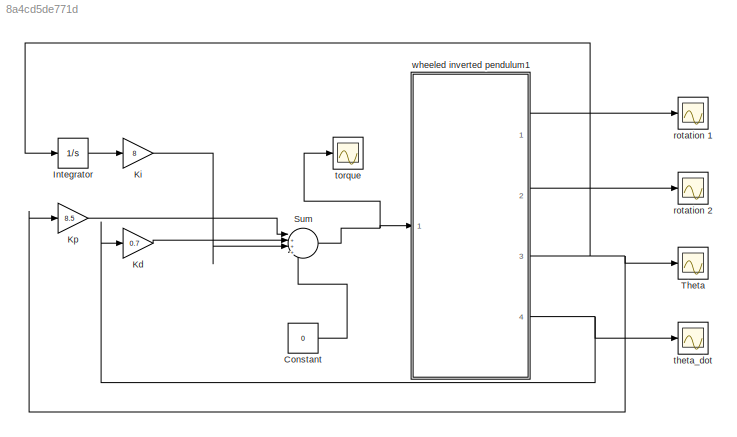
MODEL slx_8a4cd5de771d
KIND model
CONFIG AbsTol = auto
CONFIG EnableMultiTasking = off
CONFIG FixedStep = auto
CONFIG MaxStep = auto
CONFIG MinStep = auto
CONFIG RelTol = 1e-3
CONFIG SampleTimeConstraint = Unconstrained
CONFIG Solver = VariableStepAuto
CONFIG SolverName = VariableStepAuto
CONFIG StartTime = 0.0
CONFIG StopTime = 10.0
BLOCK [Constant] Constant
  Value = 0
BLOCK [Integrator] Integrator
  Ports = [1, 1]
BLOCK [Gain] Kd
  Gain = 0.7
BLOCK [Gain] Ki
  Gain = 8
BLOCK [Gain] Kp
  Gain = 8.5
BLOCK [Sum] Sum
  Inputs = |+++-
  Ports = [4, 1]
BLOCK [Scope] Theta
  Floating = off
  NumInputPorts = 1
  Ports = [1]
  ScopeSpecificationString = Simulink.scopes.TimeScopeBlockCfg('CurrentConfiguration', extmgr.ConfigurationSet(extmgr.Configuration('Core','General UI',true),extmgr.Configuration('Core','Source UI',true),extmgr.Configuration('Sources','WiredSimulink',true,'DataLoggingVariableName','ScopeData2'),extmgr.Configuration('Visuals','Time Domain',true,'SerializedDisplays',{struct('MinYLimReal','-0.20928','MaxYLimReal','1.88356','YLab...<+1494ch>
BLOCK [Scope] rotation 1
  Floating = off
  NumInputPorts = 1
  Ports = [1]
  ScopeSpecificationString = Simulink.scopes.TimeScopeBlockCfg('CurrentConfiguration', extmgr.ConfigurationSet(extmgr.Configuration('Core','General UI',true),extmgr.Configuration('Core','Source UI',true),extmgr.Configuration('Sources','WiredSimulink',true),extmgr.Configuration('Visuals','Time Domain',true,'SerializedDisplays',{struct('MinYLimReal','-5.94799','MaxYLimReal','0.66089','YLabelReal','','MinYLimMag','0.00000','MaxY...<+1468ch>
BLOCK [Scope] rotation 2
  Floating = off
  NumInputPorts = 1
  Ports = [1]
  ScopeSpecificationString = Simulink.scopes.TimeScopeBlockCfg('CurrentConfiguration', extmgr.ConfigurationSet(extmgr.Configuration('Core','General UI',true),extmgr.Configuration('Core','Source UI',true),extmgr.Configuration('Sources','WiredSimulink',true,'DataLoggingVariableName','ScopeData1'),extmgr.Configuration('Visuals','Time Domain',true,'SerializedDisplays',{struct('MinYLimReal','-38.44976','MaxYLimReal','346.04782','Y...<+1542ch>
BLOCK [Scope] theta_dot
  Floating = off
  NumInputPorts = 1
  Ports = [1]
  ScopeSpecificationString = Simulink.scopes.TimeScopeBlockCfg('CurrentConfiguration', extmgr.ConfigurationSet(extmgr.Configuration('Core','General UI',true),extmgr.Configuration('Core','Source UI',true),extmgr.Configuration('Sources','WiredSimulink',true,'DataLoggingVariableName','ScopeData3'),extmgr.Configuration('Visuals','Time Domain',true,'SerializedDisplays',{struct('MinYLimReal','-6.31333','MaxYLimReal','6.27407','YLab...<+1507ch>
BLOCK [Scope] torque
  Floating = off
  NumInputPorts = 1
  Ports = [1]
  ScopeSpecificationString = Simulink.scopes.TimeScopeBlockCfg('CurrentConfiguration', extmgr.ConfigurationSet(extmgr.Configuration('Core','General UI',true),extmgr.Configuration('Core','Source UI',true),extmgr.Configuration('Sources','WiredSimulink',true,'DataLoggingVariableName','ScopeData1'),extmgr.Configuration('Visuals','Time Domain',true,'SerializedDisplays',{struct('MinYLimReal','-5.00000','MaxYLimReal','5.00000','YLab...<+1492ch>
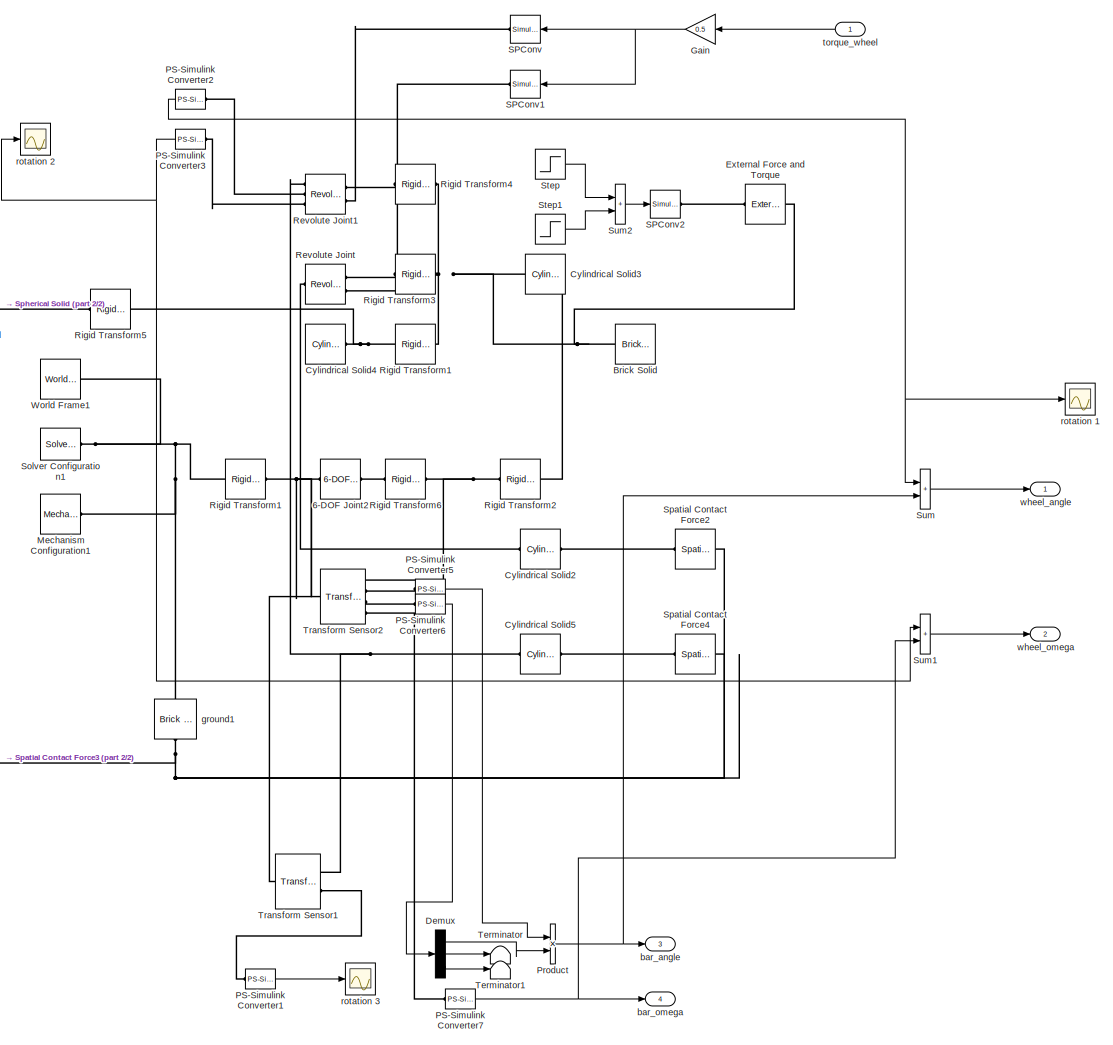
[diagram: wheeled inverted pendulum1 - part 1/2, most of the canvas]
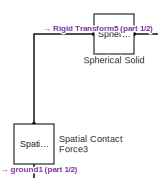
[diagram: wheeled inverted pendulum1 - part 2/2, middle left region]
BLOCK [SubSystem] wheeled inverted pendulum1
  Ports = [1, 4]
  RequestExecContextInheritance = off
BLOCK [Reference] wheeled inverted pendulum1/6-DOF Joint2  REF=sm_lib/Joints/6-DOF Joint
  Ports = [0, 0, 0, 0, 0, 1, 1]
  SourceBlock = sm_lib/Joints/6-DOF Joint
  SourceProductBaseCode = MS
  SourceType = 6-DOF Joint
BLOCK [Reference] wheeled inverted pendulum1/Brick Solid  REF=sm_lib/Body Elements/Brick Solid
  NameLocation = top
  Ports = [0, 0, 0, 0, 0, 0, 1]
  SourceBlock = sm_lib/Body Elements/Brick Solid
  SourceProductBaseCode = MS
  SourceType = Brick Solid
BLOCK [Reference] wheeled inverted pendulum1/Cylindrical Solid2  REF=sm_lib/Body Elements/Cylindrical Solid
  NameLocation = top
  Ports = [0, 0, 0, 0, 0, 1, 1]
  SourceBlock = sm_lib/Body Elements/Cylindrical Solid
  SourceProductBaseCode = MS
  SourceType = Cylindrical Solid
BLOCK [Reference] wheeled inverted pendulum1/Cylindrical Solid3  REF=sm_lib/Body Elements/Cylindrical Solid
  NameLocation = top
  Ports = [0, 0, 0, 0, 0, 0, 1]
  SourceBlock = sm_lib/Body Elements/Cylindrical Solid
  SourceProductBaseCode = MS
  SourceType = Cylindrical Solid
BLOCK [Reference] wheeled inverted pendulum1/Cylindrical Solid4  REF=sm_lib/Body Elements/Cylindrical Solid
  Ports = [0, 0, 0, 0, 0, 0, 1]
  SourceBlock = sm_lib/Body Elements/Cylindrical Solid
  SourceProductBaseCode = MS
  SourceType = Cylindrical Solid
BLOCK [Reference] wheeled inverted pendulum1/Cylindrical Solid5  REF=sm_lib/Body Elements/Cylindrical Solid
  NameLocation = top
  Ports = [0, 0, 0, 0, 0, 1, 1]
  SourceBlock = sm_lib/Body Elements/Cylindrical Solid
  SourceProductBaseCode = MS
  SourceType = Cylindrical Solid
BLOCK [Demux] wheeled inverted pendulum1/Demux
  Outputs = 3
  Ports = [1, 3]
BLOCK [Reference] wheeled inverted pendulum1/External Force and Torque  REF=sm_lib/Forces and
Torques/External Force
and Torque
  Ports = [0, 0, 0, 0, 0, 1, 1]
  SourceBlock = sm_lib/Forces and\nTorques/External Force\nand Torque
  SourceProductBaseCode = MS
  SourceType = External Force\nand Torque
BLOCK [Gain] wheeled inverted pendulum1/Gain
  Gain = 0.5
  NameLocation = top
BLOCK [Reference] wheeled inverted pendulum1/Mechanism Configuration1  REF=sm_lib/Utilities/Mechanism
Configuration
  Ports = [0, 0, 0, 0, 0, 0, 1]
  SourceBlock = sm_lib/Utilities/Mechanism\nConfiguration
  SourceProductBaseCode = MS
  SourceType = Mechanism\nConfiguration
BLOCK [Reference] wheeled inverted pendulum1/PS-Simulink Converter1  REF=nesl_utility/PS-Simulink
Converter
  Ports = [0, 1, 0, 0, 0, 1]
  SourceBlock = nesl_utility/PS-Simulink\nConverter
  SourceProductBaseCode = SS
  SourceType = PS-Simulink\nConverter
BLOCK [Reference] wheeled inverted pendulum1/PS-Simulink Converter2  REF=nesl_utility/PS-Simulink
Converter
  NameLocation = top
  Ports = [0, 1, 0, 0, 0, 1]
  SourceBlock = nesl_utility/PS-Simulink\nConverter
  SourceProductBaseCode = SS
  SourceType = PS-Simulink\nConverter
BLOCK [Reference] wheeled inverted pendulum1/PS-Simulink Converter3  REF=nesl_utility/PS-Simulink
Converter
  NameLocation = top
  Ports = [0, 1, 0, 0, 0, 1]
  SourceBlock = nesl_utility/PS-Simulink\nConverter
  SourceProductBaseCode = SS
  SourceType = PS-Simulink\nConverter
BLOCK [Reference] wheeled inverted pendulum1/PS-Simulink Converter5  REF=nesl_utility/PS-Simulink
Converter
  Ports = [0, 1, 0, 0, 0, 1]
  SourceBlock = nesl_utility/PS-Simulink\nConverter
  SourceProductBaseCode = SS
  SourceType = PS-Simulink\nConverter
BLOCK [Reference] wheeled inverted pendulum1/PS-Simulink Converter6  REF=nesl_utility/PS-Simulink
Converter
  Ports = [0, 1, 0, 0, 0, 1]
  SourceBlock = nesl_utility/PS-Simulink\nConverter
  SourceProductBaseCode = SS
  SourceType = PS-Simulink\nConverter
BLOCK [Reference] wheeled inverted pendulum1/PS-Simulink Converter7  REF=nesl_utility/PS-Simulink
Converter
  Ports = [0, 1, 0, 0, 0, 1]
  SourceBlock = nesl_utility/PS-Simulink\nConverter
  SourceProductBaseCode = SS
  SourceType = PS-Simulink\nConverter
BLOCK [Product] wheeled inverted pendulum1/Product
  Ports = [2, 1]
BLOCK [Reference] wheeled inverted pendulum1/Revolute Joint  REF=sm_lib/Joints/Revolute Joint
  NameLocation = top
  Ports = [0, 0, 0, 0, 0, 2, 1]
  SourceBlock = sm_lib/Joints/Revolute Joint
  SourceProductBaseCode = MS
  SourceType = Revolute Joint
BLOCK [Reference] wheeled inverted pendulum1/Revolute Joint1  REF=sm_lib/Joints/Revolute Joint
  NameLocation = top
  Ports = [0, 0, 0, 0, 0, 2, 3]
  SourceBlock = sm_lib/Joints/Revolute Joint
  SourceProductBaseCode = MS
  SourceType = Revolute Joint
BLOCK [Reference] wheeled inverted pendulum1/Rigid Transform1  REF=sm_lib/Frames and
Transforms/Rigid
Transform
  NameLocation = top
  Ports = [0, 0, 0, 0, 0, 1, 1]
  SourceBlock = sm_lib/Frames and\nTransforms/Rigid\nTransform
  SourceProductBaseCode = MS
  SourceType = Rigid\nTransform
BLOCK [Reference] wheeled inverted pendulum1/Rigid Transform2  REF=sm_lib/Frames and
Transforms/Rigid
Transform
  Ports = [0, 0, 0, 0, 0, 1, 1]
  SourceBlock = sm_lib/Frames and\nTransforms/Rigid\nTransform
  SourceProductBaseCode = MS
  SourceType = Rigid\nTransform
BLOCK [Reference] wheeled inverted pendulum1/Rigid Transform3  REF=sm_lib/Frames and
Transforms/Rigid
Transform
  NameLocation = top
  Ports = [0, 0, 0, 0, 0, 1, 1]
  SourceBlock = sm_lib/Frames and\nTransforms/Rigid\nTransform
  SourceProductBaseCode = MS
  SourceType = Rigid\nTransform
BLOCK [Reference] wheeled inverted pendulum1/Rigid Transform4  REF=sm_lib/Frames and
Transforms/Rigid
Transform
  NameLocation = top
  Ports = [0, 0, 0, 0, 0, 1, 1]
  SourceBlock = sm_lib/Frames and\nTransforms/Rigid\nTransform
  SourceProductBaseCode = MS
  SourceType = Rigid\nTransform
BLOCK [Reference] wheeled inverted pendulum1/Rigid Transform5  REF=sm_lib/Frames and
Transforms/Rigid
Transform
  NameLocation = top
  Ports = [0, 0, 0, 0, 0, 1, 1]
  SourceBlock = sm_lib/Frames and\nTransforms/Rigid\nTransform
  SourceProductBaseCode = MS
  SourceType = Rigid\nTransform
BLOCK [Reference] wheeled inverted pendulum1/Rigid Transform6  REF=sm_lib/Frames and
Transforms/Rigid
Transform
  Ports = [0, 0, 0, 0, 0, 1, 1]
  SourceBlock = sm_lib/Frames and\nTransforms/Rigid\nTransform
  SourceProductBaseCode = MS
  SourceType = Rigid\nTransform
BLOCK [Reference] wheeled inverted pendulum1/SPConv  REF=nesl_utility/Simulink-PS
Converter
  NameLocation = top
  Ports = [1, 0, 0, 0, 0, 0, 1]
  SourceBlock = nesl_utility/Simulink-PS\nConverter
  SourceProductBaseCode = SS
  SourceType = Simulink-PS\nConverter
BLOCK [Reference] wheeled inverted pendulum1/SPConv1  REF=nesl_utility/Simulink-PS
Converter
  NameLocation = top
  Ports = [1, 0, 0, 0, 0, 0, 1]
  SourceBlock = nesl_utility/Simulink-PS\nConverter
  SourceProductBaseCode = SS
  SourceType = Simulink-PS\nConverter
BLOCK [Reference] wheeled inverted pendulum1/SPConv2  REF=nesl_utility/Simulink-PS
Converter
  Ports = [1, 0, 0, 0, 0, 0, 1]
  SourceBlock = nesl_utility/Simulink-PS\nConverter
  SourceProductBaseCode = SS
  SourceType = Simulink-PS\nConverter
BLOCK [Reference] wheeled inverted pendulum1/Solver Configuration1  REF=nesl_utility/Solver
Configuration
  Ports = [0, 0, 0, 0, 0, 0, 1]
  SourceBlock = nesl_utility/Solver\nConfiguration
  SourceProductBaseCode = SS
  SourceType = Solver\nConfiguration
BLOCK [Reference] wheeled inverted pendulum1/Spatial Contact Force2  REF=sm_lib/Forces and
Torques/Spatial
Contact Force
  NameLocation = top
  Ports = [0, 0, 0, 0, 0, 1, 1]
  SourceBlock = sm_lib/Forces and\nTorques/Spatial\nContact Force
  SourceProductBaseCode = MS
  SourceType = Spatial\nContact Force
BLOCK [Reference] wheeled inverted pendulum1/Spatial Contact Force3  REF=sm_lib/Forces and
Torques/Spatial
Contact Force
  NameLocation = right
  Ports = [0, 0, 0, 0, 0, 1, 1]
  SourceBlock = sm_lib/Forces and\nTorques/Spatial\nContact Force
  SourceProductBaseCode = MS
  SourceType = Spatial\nContact Force
BLOCK [Reference] wheeled inverted pendulum1/Spatial Contact Force4  REF=sm_lib/Forces and
Torques/Spatial
Contact Force
  NameLocation = top
  Ports = [0, 0, 0, 0, 0, 1, 1]
  SourceBlock = sm_lib/Forces and\nTorques/Spatial\nContact Force
  SourceProductBaseCode = MS
  SourceType = Spatial\nContact Force
BLOCK [Reference] wheeled inverted pendulum1/Spherical Solid  REF=sm_lib/Body Elements/Spherical Solid
  Ports = [0, 0, 0, 0, 0, 1, 1]
  SourceBlock = sm_lib/Body Elements/Spherical Solid
  SourceProductBaseCode = MS
  SourceType = Spherical Solid
BLOCK [Step] wheeled inverted pendulum1/Step
  After = 20
  SampleTime = 0
BLOCK [Step] wheeled inverted pendulum1/Step1
  After = -20
  SampleTime = 0
BLOCK [Sum] wheeled inverted pendulum1/Sum
  IconShape = rectangular
  Ports = [2, 1]
BLOCK [Sum] wheeled inverted pendulum1/Sum1
  IconShape = rectangular
  Ports = [2, 1]
BLOCK [Sum] wheeled inverted pendulum1/Sum2
  IconShape = rectangular
  Ports = [2, 1]
BLOCK [Terminator] wheeled inverted pendulum1/Terminator
BLOCK [Terminator] wheeled inverted pendulum1/Terminator1
BLOCK [Reference] wheeled inverted pendulum1/Transform Sensor1  REF=sm_lib/Frames and
Transforms/Transform
Sensor
  Ports = [0, 0, 0, 0, 0, 1, 2]
  SourceBlock = sm_lib/Frames and\nTransforms/Transform\nSensor
  SourceProductBaseCode = MS
  SourceType = Transform\nSensor
BLOCK [Reference] wheeled inverted pendulum1/Transform Sensor2  REF=sm_lib/Frames and
Transforms/Transform
Sensor
  Ports = [0, 0, 0, 0, 0, 1, 4]
  SourceBlock = sm_lib/Frames and\nTransforms/Transform\nSensor
  SourceProductBaseCode = MS
  SourceType = Transform\nSensor
BLOCK [Reference] wheeled inverted pendulum1/World Frame1  REF=sm_lib/Frames and
Transforms/World Frame
  Ports = [0, 0, 0, 0, 0, 0, 1]
  SourceBlock = sm_lib/Frames and\nTransforms/World Frame
  SourceProductBaseCode = MS
  SourceType = World Frame
BLOCK [Outport] wheeled inverted pendulum1/bar_angle
  Port = 3
BLOCK [Outport] wheeled inverted pendulum1/bar_omega
  Port = 4
BLOCK [Reference] wheeled inverted pendulum1/ground1  REF=sm_lib/Body Elements/Brick Solid
  NameLocation = right
  Ports = [0, 0, 0, 0, 0, 1, 1]
  SourceBlock = sm_lib/Body Elements/Brick Solid
  SourceProductBaseCode = MS
  SourceType = Brick Solid
BLOCK [Scope] wheeled inverted pendulum1/rotation 1
  Floating = off
  NumInputPorts = 1
  Ports = [1]
  ScopeSpecificationString = Simulink.scopes.TimeScopeBlockCfg('CurrentConfiguration', extmgr.ConfigurationSet(extmgr.Configuration('Core','General UI',true),extmgr.Configuration('Core','Source UI',true),extmgr.Configuration('Sources','WiredSimulink',true,'DataLoggingVariableName','ScopeData1'),extmgr.Configuration('Visuals','Time Domain',true,'SerializedDisplays',{struct('MinYLimReal','-7.82783','MaxYLimReal','0.86976','YLab...<+1514ch>
BLOCK [Scope] wheeled inverted pendulum1/rotation 2
  Floating = off
  NumInputPorts = 1
  Ports = [1]
  ScopeSpecificationString = Simulink.scopes.TimeScopeBlockCfg('CurrentConfiguration', extmgr.ConfigurationSet(extmgr.Configuration('Core','General UI',true),extmgr.Configuration('Core','Source UI',true),extmgr.Configuration('Sources','WiredSimulink',true,'DataLoggingVariableName','ScopeData2'),extmgr.Configuration('Visuals','Time Domain',true,'SerializedDisplays',{struct('MinYLimReal','-13.98431','MaxYLimReal','3.50549','YLa...<+1531ch>
BLOCK [Scope] wheeled inverted pendulum1/rotation 3
  Floating = off
  NumInputPorts = 1
  Ports = [1]
  ScopeSpecificationString = Simulink.scopes.TimeScopeBlockCfg('CurrentConfiguration', extmgr.ConfigurationSet(extmgr.Configuration('Core','General UI',true),extmgr.Configuration('Core','Source UI',true),extmgr.Configuration('Sources','WiredSimulink',true,'DataLoggingVariableName','ScopeData3'),extmgr.Configuration('Visuals','Time Domain',true,'SerializedDisplays',{struct('MinYLimReal','-0.09894','MaxYLimReal','0.89048','YLab...<+1514ch>
BLOCK [Inport] wheeled inverted pendulum1/torque_wheel
  NameLocation = top
BLOCK [Outport] wheeled inverted pendulum1/wheel_angle
BLOCK [Outport] wheeled inverted pendulum1/wheel_omega
  Port = 2
LINE Constant:1 -> Sum:4
LINE Integrator:1 -> Ki:1
LINE Kd:1 -> Sum:2
LINE Ki:1 -> Sum:3
LINE Kp:1 -> Sum:1
NET Sum:1 -> torque:1, wheeled inverted pendulum1:1
LINE wheeled inverted pendulum1/Demux:1 -> wheeled inverted pendulum1/Product:2
LINE wheeled inverted pendulum1/Demux:2 -> wheeled inverted pendulum1/Terminator:1
LINE wheeled inverted pendulum1/Demux:3 -> wheeled inverted pendulum1/Terminator1:1
NET wheeled inverted pendulum1/Gain:1 -> wheeled inverted pendulum1/SPConv1:1, wheeled inverted pendulum1/SPConv:1
LINE wheeled inverted pendulum1/PS-Simulink Converter1:1 -> wheeled inverted pendulum1/rotation 3:1
NET wheeled inverted pendulum1/PS-Simulink Converter2:1 -> wheeled inverted pendulum1/Sum:1, wheeled inverted pendulum1/rotation 1:1
NET wheeled inverted pendulum1/PS-Simulink Converter3:1 -> wheeled inverted pendulum1/Sum1:1, wheeled inverted pendulum1/rotation 2:1
LINE wheeled inverted pendulum1/PS-Simulink Converter5:1 -> wheeled inverted pendulum1/Product:1
LINE wheeled inverted pendulum1/PS-Simulink Converter6:1 -> wheeled inverted pendulum1/Demux:1
NET wheeled inverted pendulum1/PS-Simulink Converter7:1 -> wheeled inverted pendulum1/Sum1:2, wheeled inverted pendulum1/bar_omega:1
NET wheeled inverted pendulum1/Product:1 -> wheeled inverted pendulum1/Sum:2, wheeled inverted pendulum1/bar_angle:1
LINE wheeled inverted pendulum1/Step1:1 -> wheeled inverted pendulum1/Sum2:2
LINE wheeled inverted pendulum1/Step:1 -> wheeled inverted pendulum1/Sum2:1
LINE wheeled inverted pendulum1/Sum1:1 -> wheeled inverted pendulum1/wheel_omega:1
LINE wheeled inverted pendulum1/Sum2:1 -> wheeled inverted pendulum1/SPConv2:1
LINE wheeled inverted pendulum1/Sum:1 -> wheeled inverted pendulum1/wheel_angle:1
LINE wheeled inverted pendulum1/torque_wheel:1 -> wheeled inverted pendulum1/Gain:1
LINE wheeled inverted pendulum1:1 -> rotation 1:1
LINE wheeled inverted pendulum1:2 -> rotation 2:1
NET wheeled inverted pendulum1:3 -> Integrator:1, Kp:1, Theta:1
NET wheeled inverted pendulum1:4 -> Kd:1, theta_dot:1
PNET net1: wheeled inverted pendulum1/6-DOF Joint2:LConn1 -- wheeled inverted pendulum1/Cylindrical Solid4:RConn1 -- wheeled inverted pendulum1/Rigid Transform1:RConn1 -- wheeled inverted pendulum1/Rigid Transform5:LConn1 -- wheeled inverted pendulum1/Transform Sensor1:LConn1 -- wheeled inverted pendulum1/Transform Sensor2:LConn1
PLINE wheeled inverted pendulum1/6-DOF Joint2:RConn1 -- wheeled inverted pendulum1/Rigid Transform6:LConn1
PNET net2: wheeled inverted pendulum1/Brick Solid:RConn1 -- wheeled inverted pendulum1/External Force and Torque:RConn1 -- wheeled inverted pendulum1/Mechanism Configuration1:RConn1 -- wheeled inverted pendulum1/Rigid Transform1:LConn1 -- wheeled inverted pendulum1/Rigid Transform2:RConn1 -- wheeled inverted pendulum1/Rigid Transform3:LConn1 -- wheeled inverted pendulum1/Rigid Transform4:LConn1 -- wheeled inverted pendulum1/Solver Configuration1:RConn1 -- wheeled inverted pendulum1/World Frame1:RConn1 -- wheeled inverted pendulum1/ground1:RConn1
PLINE wheeled inverted pendulum1/Cylindrical Solid2:LConn1 -- wheeled inverted pendulum1/Spatial Contact Force2:RConn1
PLINE wheeled inverted pendulum1/Cylindrical Solid2:RConn1 -- wheeled inverted pendulum1/Revolute Joint:RConn1
PLINE wheeled inverted pendulum1/Cylindrical Solid5:LConn1 -- wheeled inverted pendulum1/Spatial Contact Force4:RConn1
PNET net3: wheeled inverted pendulum1/Cylindrical Solid5:RConn1 -- wheeled inverted pendulum1/Revolute Joint1:RConn1 -- wheeled inverted pendulum1/Transform Sensor1:RConn1
PLINE wheeled inverted pendulum1/External Force and Torque:LConn1 -- wheeled inverted pendulum1/SPConv2:RConn1
PLINE wheeled inverted pendulum1/PS-Simulink Converter1:LConn1 -- wheeled inverted pendulum1/Transform Sensor1:RConn2
PLINE wheeled inverted pendulum1/PS-Simulink Converter2:LConn1 -- wheeled inverted pendulum1/Revolute Joint1:RConn2
PLINE wheeled inverted pendulum1/PS-Simulink Converter3:LConn1 -- wheeled inverted pendulum1/Revolute Joint1:RConn3
PLINE wheeled inverted pendulum1/PS-Simulink Converter5:LConn1 -- wheeled inverted pendulum1/Transform Sensor2:RConn2
PLINE wheeled inverted pendulum1/PS-Simulink Converter6:LConn1 -- wheeled inverted pendulum1/Transform Sensor2:RConn3
PLINE wheeled inverted pendulum1/PS-Simulink Converter7:LConn1 -- wheeled inverted pendulum1/Transform Sensor2:RConn4
PLINE wheeled inverted pendulum1/Revolute Joint1:LConn1 -- wheeled inverted pendulum1/Rigid Transform4:RConn1
PLINE wheeled inverted pendulum1/Revolute Joint1:LConn2 -- wheeled inverted pendulum1/SPConv:RConn1
PLINE wheeled inverted pendulum1/Revolute Joint:LConn1 -- wheeled inverted pendulum1/Rigid Transform3:RConn1
PLINE wheeled inverted pendulum1/Revolute Joint:LConn2 -- wheeled inverted pendulum1/SPConv1:RConn1
PNET net4: wheeled inverted pendulum1/Rigid Transform2:LConn1 -- wheeled inverted pendulum1/Rigid Transform6:RConn1 -- wheeled inverted pendulum1/Transform Sensor2:RConn1
PLINE wheeled inverted pendulum1/Rigid Transform5:RConn1 -- wheeled inverted pendulum1/Spherical Solid:RConn1
PNET net5: wheeled inverted pendulum1/Spatial Contact Force2:LConn1 -- wheeled inverted pendulum1/Spatial Contact Force3:LConn1 -- wheeled inverted pendulum1/Spatial Contact Force4:LConn1 -- wheeled inverted pendulum1/ground1:LConn1
PLINE wheeled inverted pendulum1/Spatial Contact Force3:RConn1 -- wheeled inverted pendulum1/Spherical Solid:LConn1
note: NET lines group one-source signal fan-out (src -> all destinations, sorted); 1:1 wires keep LINE; PNET lines group multi-terminal physical nets as a canonical sorted terminal list (undirected conserving connections); 2-terminal nets keep the pairwise PLINE form
